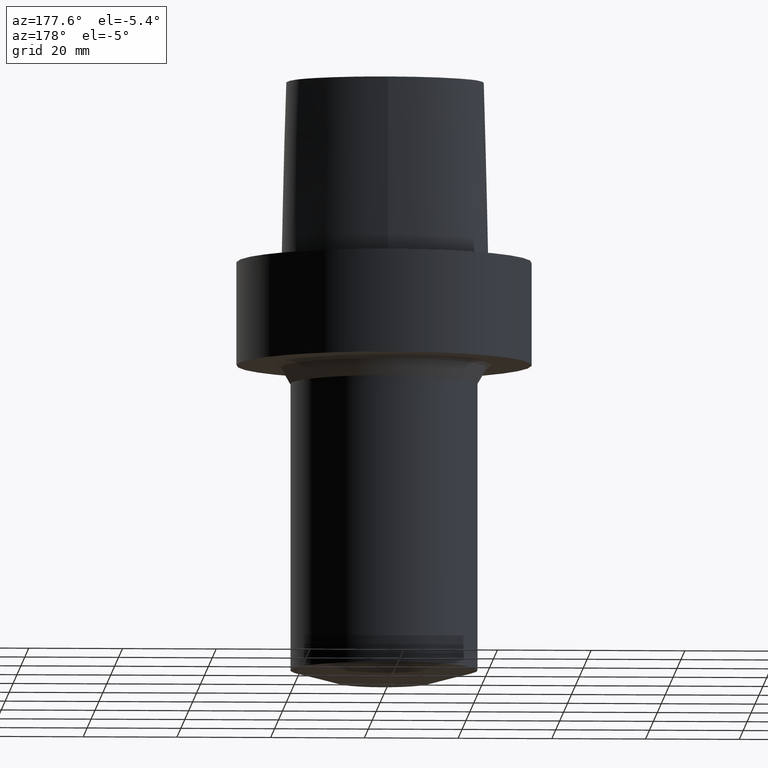
[diagram: clean part render]
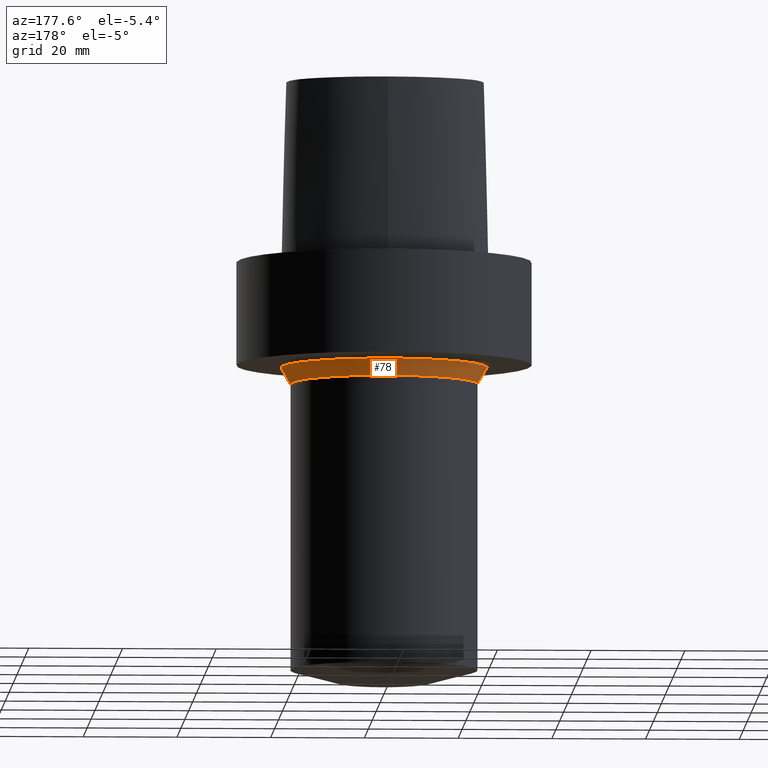
[diagram: same view with one face highlighted and labeled with its STEP entity id]
A machine part, auxiliary view. The second image highlights one B-rep face of the part: STEP entity #78.
In plain terms, the highlighted conical surface has half-angle 30 deg.
Its self-contained STEP definition (entity closure, byte-faithful):
#78=ADVANCED_FACE('',(#97,#98),#99,.T.);
#97=FACE_BOUND('',#128,.T.);
#98=FACE_BOUND('',#129,.T.);
#99=CONICAL_SURFACE('',#130,21.0103629684461,0.523598773957024);
#128=EDGE_LOOP('',(#305));
#129=EDGE_LOOP('',(#306));
#130=AXIS2_PLACEMENT_3D('',#307,#308,#309);
#305=ORIENTED_EDGE('',*,*,#355,.T.);
#306=ORIENTED_EDGE('',*,*,#354,.F.);
#307=CARTESIAN_POINT('',(1.484884E-015,2.969768E-015,-24.2500000050327));
#308=DIRECTION('',(-0.0,-0.0,1.0));
#309=DIRECTION('',(0.0,1.0,0.0));
#354=EDGE_CURVE('',#375,#375,#376,.T.);
#355=EDGE_CURVE('',#377,#377,#378,.T.);
#375=VERTEX_POINT('',#462);
#376=CIRCLE('',#463,20.0);
#377=VERTEX_POINT('',#464);
#378=CIRCLE('',#465,22.0207259368922);
#462=CARTESIAN_POINT('',(-9.643285E-016,-20.0,-26.0000000046826));
#463=AXIS2_PLACEMENT_3D('',#522,#523,#524);
#464=CARTESIAN_POINT('',(-1.334253E-015,-22.0207259368922,-22.5000000053828));
#465=AXIS2_PLACEMENT_3D('',#525,#526,#527);
#522=CARTESIAN_POINT('',(1.592041E-015,3.184082E-015,-26.0000000046826));
#523=DIRECTION('',(0.0,0.0,-1.0));
#524=DIRECTION('',(0.0,1.0,0.0));
#525=CARTESIAN_POINT('',(1.377728E-015,2.755455E-015,-22.5000000053828));
#526=DIRECTION('',(0.0,0.0,-1.0));
#527=DIRECTION('',(0.0,1.0,0.0));